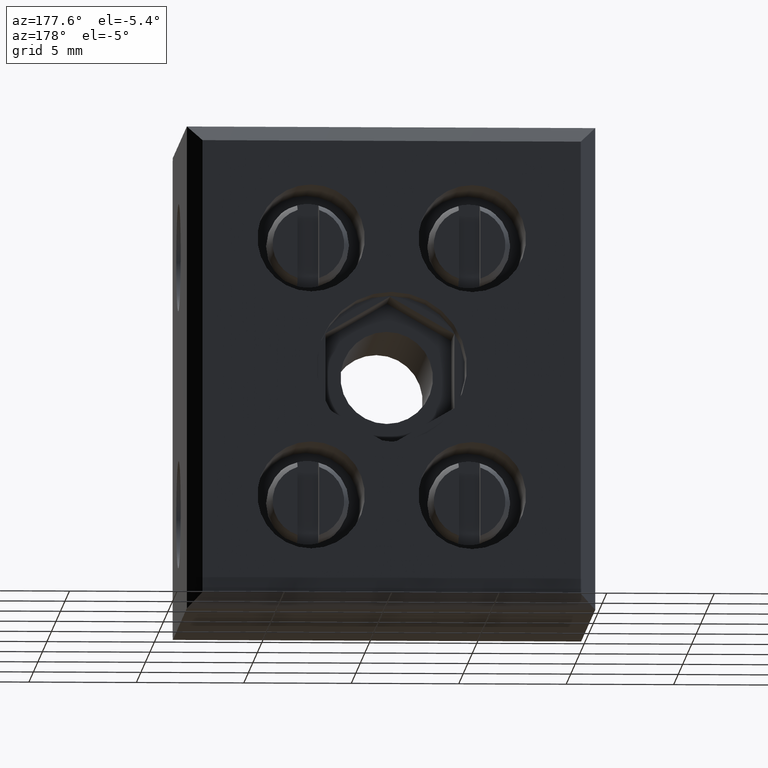
[diagram: clean part render]
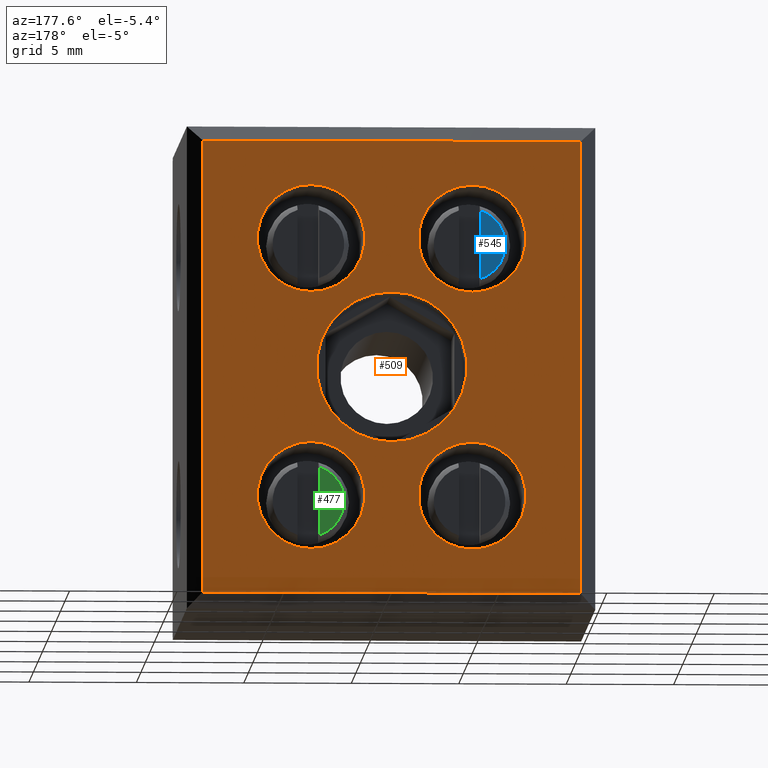
[diagram: same view with three faces highlighted in distinct colors, each labeled with its STEP entity id]
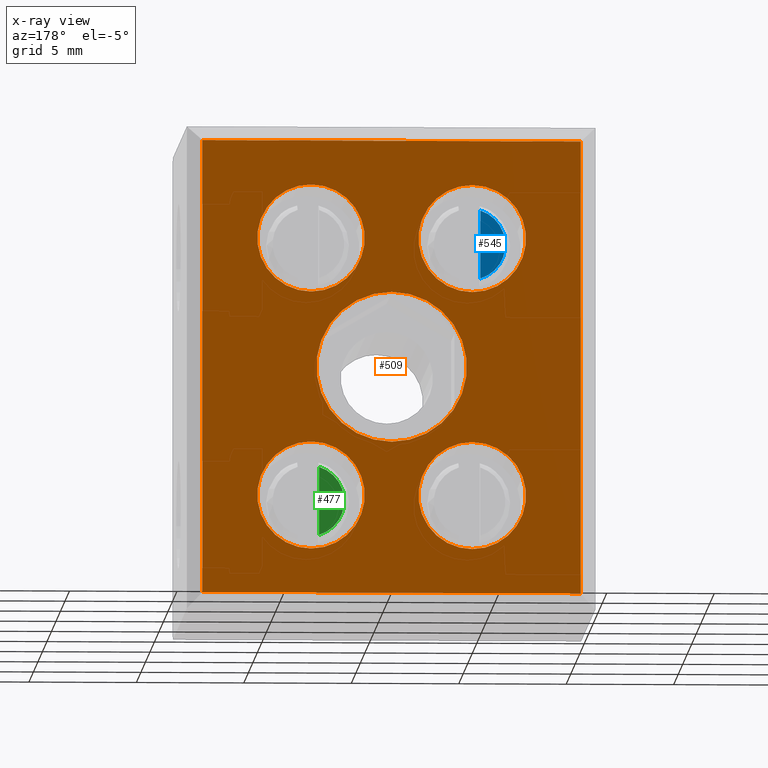
[diagram: x-ray of the same camera — body ghosted, the three highlighted faces saturated]
A machine part, auxiliary view with three faces highlighted in distinct colors.
The next image is the same camera in x-ray (body ghosted, the three faces saturated) — at least one of them is partly hidden behind the body in this view.
Their STEP definitions:

[orange] entity #509 — the highlighted planar face has unit normal (0, -1, 0).
#38 = EDGE_CURVE ( 'NONE', #5422, #5477, #4344, .T. ) ;
#53 = EDGE_CURVE ( 'NONE', #5484, #5471, #4372, .T. ) ;
#88 = EDGE_CURVE ( 'NONE', #5467, #5466, #4411, .T. ) ;
#93 = EDGE_CURVE ( 'NONE', #5461, #5504, #4420, .T. ) ;
#128 = EDGE_CURVE ( 'NONE', #4635, #5538, #4501, .T. ) ;
#261 = EDGE_CURVE ( 'NONE', #5538, #4635, #4466, .T. ) ;
#263 = EDGE_CURVE ( 'NONE', #5466, #5467, #4569, .T. ) ;
#266 = EDGE_CURVE ( 'NONE', #4734, #4797, #1897, .T. ) ;
#271 = EDGE_CURVE ( 'NONE', #5504, #5461, #4455, .T. ) ;
#277 = EDGE_CURVE ( 'NONE', #5471, #5484, #4526, .T. ) ;
#291 = EDGE_CURVE ( 'NONE', #4753, #4797, #1938, .T. ) ;
#292 = EDGE_CURVE ( 'NONE', #5477, #5422, #716, .T. ) ;
#315 = EDGE_CURVE ( 'NONE', #4767, #4753, #2008, .T. ) ;
#359 = EDGE_CURVE ( 'NONE', #4734, #4767, #1088, .T. ) ;
#509 = ADVANCED_FACE ( 'NONE', ( #2964, #2943, #2968, #2926, #2920, #2929 ), #2928, .F. ) ;
#691 = AXIS2_PLACEMENT_3D ( 'NONE', #1939, #1913, #1947 ) ;
#709 = AXIS2_PLACEMENT_3D ( 'NONE', #1976, #1980, #1989 ) ;
#714 = VECTOR ( 'NONE', #1910, 1000.000000000000000 ) ;
#716 = CIRCLE ( 'NONE', #709, 3.499999999999999600 ) ;
#726 = VECTOR ( 'NONE', #2014, 1000.000000000000000 ) ;
#787 = VECTOR ( 'NONE', #1133, 1000.000000000000000 ) ;
#961 = AXIS2_PLACEMENT_3D ( 'NONE', #2947, #2923, #2948 ) ;
#1088 = LINE ( 'NONE', #1126, #787 ) ;
#1126 = CARTESIAN_POINT ( 'NONE',  ( 8.262642282959173900, 17.00000000000000000, 15.76443990011444600 ) ) ;
#1133 = DIRECTION ( 'NONE',  ( -0.0000000000000000000, -0.0000000000000000000, -1.000000000000000000 ) ) ;
#1826 = CARTESIAN_POINT ( 'NONE',  ( 3.212642282959047100, 17.00000000000000000, 10.51443988491849900 ) ) ;
#1828 = DIRECTION ( 'NONE',  ( 0.0000000000000000000, 1.000000000000000000, 0.0000000000000000000 ) ) ;
#1836 = DIRECTION ( 'NONE',  ( 0.0000000000000000000, 0.0000000000000000000, 1.000000000000000000 ) ) ;
#1871 = DIRECTION ( 'NONE',  ( 0.0000000000000000000, 0.0000000000000000000, 1.000000000000000000 ) ) ;
#1872 = CARTESIAN_POINT ( 'NONE',  ( -4.287357717040952900, 17.00000000000000000, 10.51443988491849900 ) ) ;
#1879 = CARTESIAN_POINT ( 'NONE',  ( 8.459047474323355700, 17.00000000000000000, 15.06443988491829300 ) ) ;
#1883 = DIRECTION ( 'NONE',  ( 0.0000000000000000000, 1.000000000000000000, 0.0000000000000000000 ) ) ;
#1889 = DIRECTION ( 'NONE',  ( -1.000000000000000000, -0.0000000000000000000, -0.0000000000000000000 ) ) ;
#1891 = DIRECTION ( 'NONE',  ( 0.0000000000000000000, 1.000000000000000000, 0.0000000000000000000 ) ) ;
#1897 = LINE ( 'NONE', #1879, #4272 ) ;
#1899 = CARTESIAN_POINT ( 'NONE',  ( 3.212642282959047100, 17.00000000000000000, -1.485560115081501900 ) ) ;
#1901 = DIRECTION ( 'NONE',  ( 0.0000000000000000000, 0.0000000000000000000, 1.000000000000000000 ) ) ;
#1910 = DIRECTION ( 'NONE',  ( -0.0000000000000000000, 0.0000000000000000000, 1.000000000000000000 ) ) ;
#1913 = DIRECTION ( 'NONE',  ( 0.0000000000000000000, 1.000000000000000000, 0.0000000000000000000 ) ) ;
#1927 = CARTESIAN_POINT ( 'NONE',  ( -9.337357717040948300, 17.00000000000000000, 15.76443990011444600 ) ) ;
#1938 = LINE ( 'NONE', #1927, #714 ) ;
#1939 = CARTESIAN_POINT ( 'NONE',  ( -4.287357717040952900, 17.00000000000000000, -1.485560115081501900 ) ) ;
#1947 = DIRECTION ( 'NONE',  ( 0.0000000000000000000, 0.0000000000000000000, 1.000000000000000000 ) ) ;
#1976 = CARTESIAN_POINT ( 'NONE',  ( -0.5373577170409511400, 17.00000000000000000, 4.514439884918497900 ) ) ;
#1980 = DIRECTION ( 'NONE',  ( 0.0000000000000000000, 1.000000000000000000, 0.0000000000000000000 ) ) ;
#1989 = DIRECTION ( 'NONE',  ( 0.0000000000000000000, 0.0000000000000000000, 1.000000000000000000 ) ) ;
#2008 = LINE ( 'NONE', #2028, #726 ) ;
#2014 = DIRECTION ( 'NONE',  ( -1.000000000000000000, -8.755881686935502400E-013, 8.755881686935547800E-013 ) ) ;
#2028 = CARTESIAN_POINT ( 'NONE',  ( 8.459047474285180000, 17.00000000000017400, -6.035560115113273800 ) ) ;
#2593 = CARTESIAN_POINT ( 'NONE',  ( 3.212642282959047500, 17.00000000000000000, 8.014439884918497000 ) ) ;
#2628 = CARTESIAN_POINT ( 'NONE',  ( 8.262642282959173900, 17.00000000000000000, 15.06443988491829300 ) ) ;
#2714 = CARTESIAN_POINT ( 'NONE',  ( -9.337357717040948300, 17.00000000000000000, 15.06443988491829300 ) ) ;
#2720 = CARTESIAN_POINT ( 'NONE',  ( -9.337357717044803000, 16.99999999999614900, -6.035560115086132000 ) ) ;
#2733 = CARTESIAN_POINT ( 'NONE',  ( 8.262642282959173900, 17.00000000000000000, -6.035560115105396600 ) ) ;
#2740 = CARTESIAN_POINT ( 'NONE',  ( -0.5373577170409511400, 17.00000000000000000, 8.014439884918497000 ) ) ;
#2743 = CARTESIAN_POINT ( 'NONE',  ( -0.5373577170409507000, 17.00000000000000000, 1.014439884918498600 ) ) ;
#2763 = CARTESIAN_POINT ( 'NONE',  ( -4.287357717040952900, 17.00000000000000000, -3.985560115081502500 ) ) ;
#2766 = CARTESIAN_POINT ( 'NONE',  ( -4.287357717040952900, 17.00000000000000000, 8.014439884918497000 ) ) ;
#2780 = CARTESIAN_POINT ( 'NONE',  ( -4.287357717040952900, 17.00000000000000000, 13.01443988491849900 ) ) ;
#2783 = CARTESIAN_POINT ( 'NONE',  ( 3.212642282959047500, 17.00000000000000000, -3.985560115081501700 ) ) ;
#2803 = CARTESIAN_POINT ( 'NONE',  ( -4.287357717040952900, 17.00000000000000000, 1.014439884918498600 ) ) ;
#2806 = CARTESIAN_POINT ( 'NONE',  ( 3.212642282959047100, 17.00000000000000000, 13.01443988491849900 ) ) ;
#2844 = CARTESIAN_POINT ( 'NONE',  ( 3.212642282959047100, 17.00000000000000000, 1.014439884918497700 ) ) ;
#2920 = FACE_BOUND ( 'NONE', #3896, .T. ) ;
#2923 = DIRECTION ( 'NONE',  ( 0.0000000000000000000, -1.000000000000000000, 0.0000000000000000000 ) ) ;
#2926 = FACE_BOUND ( 'NONE', #3880, .T. ) ;
#2928 = PLANE ( 'NONE',  #961 ) ;
#2929 = FACE_OUTER_BOUND ( 'NONE', #3899, .T. ) ;
#2943 = FACE_BOUND ( 'NONE', #3861, .T. ) ;
#2947 = CARTESIAN_POINT ( 'NONE',  ( 8.459047474323355700, 17.00000000000000000, 15.76443990011444600 ) ) ;
#2948 = DIRECTION ( 'NONE',  ( 0.0000000000000000000, -0.0000000000000000000, -1.000000000000000000 ) ) ;
#2964 = FACE_BOUND ( 'NONE', #3850, .T. ) ;
#2968 = FACE_BOUND ( 'NONE', #3845, .T. ) ;
#3215 = DIRECTION ( 'NONE',  ( 0.0000000000000000000, 0.0000000000000000000, 1.000000000000000000 ) ) ;
#3227 = DIRECTION ( 'NONE',  ( 0.0000000000000000000, 1.000000000000000000, 0.0000000000000000000 ) ) ;
#3241 = CARTESIAN_POINT ( 'NONE',  ( 3.212642282959047100, 17.00000000000000000, 10.51443988491849900 ) ) ;
#3547 = ORIENTED_EDGE ( 'NONE', *, *, #266, .F. ) ;
#3555 = ORIENTED_EDGE ( 'NONE', *, *, #38, .F. ) ;
#3561 = ORIENTED_EDGE ( 'NONE', *, *, #128, .F. ) ;
#3581 = ORIENTED_EDGE ( 'NONE', *, *, #315, .T. ) ;
#3845 = EDGE_LOOP ( 'NONE', ( #4785, #4649 ) ) ;
#3850 = EDGE_LOOP ( 'NONE', ( #4737, #4714 ) ) ;
#3861 = EDGE_LOOP ( 'NONE', ( #4662, #4700 ) ) ;
#3880 = EDGE_LOOP ( 'NONE', ( #4726, #3561 ) ) ;
#3896 = EDGE_LOOP ( 'NONE', ( #4804, #3555 ) ) ;
#3899 = EDGE_LOOP ( 'NONE', ( #4835, #3581, #4881, #3547 ) ) ;
#4022 = DIRECTION ( 'NONE',  ( 0.0000000000000000000, 0.0000000000000000000, 1.000000000000000000 ) ) ;
#4034 = DIRECTION ( 'NONE',  ( 0.0000000000000000000, 1.000000000000000000, 0.0000000000000000000 ) ) ;
#4048 = CARTESIAN_POINT ( 'NONE',  ( -0.5373577170409511400, 17.00000000000000000, 4.514439884918497900 ) ) ;
#4057 = CARTESIAN_POINT ( 'NONE',  ( -4.287357717040952900, 17.00000000000000000, -1.485560115081501900 ) ) ;
#4091 = DIRECTION ( 'NONE',  ( 0.0000000000000000000, 1.000000000000000000, 0.0000000000000000000 ) ) ;
#4114 = DIRECTION ( 'NONE',  ( 0.0000000000000000000, 0.0000000000000000000, 1.000000000000000000 ) ) ;
#4189 = CARTESIAN_POINT ( 'NONE',  ( -4.287357717040952900, 17.00000000000000000, 10.51443988491849900 ) ) ;
#4191 = CARTESIAN_POINT ( 'NONE',  ( 3.212642282959047100, 17.00000000000000000, -1.485560115081501900 ) ) ;
#4192 = DIRECTION ( 'NONE',  ( 0.0000000000000000000, 1.000000000000000000, 0.0000000000000000000 ) ) ;
#4193 = DIRECTION ( 'NONE',  ( 0.0000000000000000000, 0.0000000000000000000, 1.000000000000000000 ) ) ;
#4207 = DIRECTION ( 'NONE',  ( 0.0000000000000000000, 1.000000000000000000, 0.0000000000000000000 ) ) ;
#4218 = DIRECTION ( 'NONE',  ( 0.0000000000000000000, 0.0000000000000000000, 1.000000000000000000 ) ) ;
#4272 = VECTOR ( 'NONE', #1889, 1000.000000000000000 ) ;
#4344 = CIRCLE ( 'NONE', #4355, 3.499999999999999600 ) ;
#4355 = AXIS2_PLACEMENT_3D ( 'NONE', #4048, #4034, #4022 ) ;
#4368 = AXIS2_PLACEMENT_3D ( 'NONE', #4057, #4091, #4114 ) ;
#4372 = CIRCLE ( 'NONE', #4368, 2.500000000000000400 ) ;
#4411 = CIRCLE ( 'NONE', #4414, 2.500000000000000400 ) ;
#4414 = AXIS2_PLACEMENT_3D ( 'NONE', #4189, #4207, #4218 ) ;
#4420 = CIRCLE ( 'NONE', #4422, 2.499999999999999600 ) ;
#4422 = AXIS2_PLACEMENT_3D ( 'NONE', #4191, #4192, #4193 ) ;
#4455 = CIRCLE ( 'NONE', #4486, 2.499999999999999600 ) ;
#4466 = CIRCLE ( 'NONE', #4518, 2.500000000000000400 ) ;
#4486 = AXIS2_PLACEMENT_3D ( 'NONE', #1899, #1883, #1871 ) ;
#4501 = CIRCLE ( 'NONE', #4512, 2.500000000000000400 ) ;
#4512 = AXIS2_PLACEMENT_3D ( 'NONE', #3241, #3227, #3215 ) ;
#4518 = AXIS2_PLACEMENT_3D ( 'NONE', #1826, #1828, #1836 ) ;
#4526 = CIRCLE ( 'NONE', #691, 2.500000000000000400 ) ;
#4569 = CIRCLE ( 'NONE', #4591, 2.500000000000000400 ) ;
#4591 = AXIS2_PLACEMENT_3D ( 'NONE', #1872, #1891, #1901 ) ;
#4635 = VERTEX_POINT ( 'NONE', #2593 ) ;
#4649 = ORIENTED_EDGE ( 'NONE', *, *, #88, .F. ) ;
#4662 = ORIENTED_EDGE ( 'NONE', *, *, #271, .F. ) ;
#4700 = ORIENTED_EDGE ( 'NONE', *, *, #93, .F. ) ;
#4714 = ORIENTED_EDGE ( 'NONE', *, *, #53, .F. ) ;
#4726 = ORIENTED_EDGE ( 'NONE', *, *, #261, .F. ) ;
#4734 = VERTEX_POINT ( 'NONE', #2628 ) ;
#4737 = ORIENTED_EDGE ( 'NONE', *, *, #277, .F. ) ;
#4753 = VERTEX_POINT ( 'NONE', #2720 ) ;
#4767 = VERTEX_POINT ( 'NONE', #2733 ) ;
#4785 = ORIENTED_EDGE ( 'NONE', *, *, #263, .F. ) ;
#4797 = VERTEX_POINT ( 'NONE', #2714 ) ;
#4804 = ORIENTED_EDGE ( 'NONE', *, *, #292, .F. ) ;
#4835 = ORIENTED_EDGE ( 'NONE', *, *, #359, .T. ) ;
#4881 = ORIENTED_EDGE ( 'NONE', *, *, #291, .T. ) ;
#5422 = VERTEX_POINT ( 'NONE', #2743 ) ;
#5461 = VERTEX_POINT ( 'NONE', #2783 ) ;
#5466 = VERTEX_POINT ( 'NONE', #2780 ) ;
#5467 = VERTEX_POINT ( 'NONE', #2766 ) ;
#5471 = VERTEX_POINT ( 'NONE', #2803 ) ;
#5477 = VERTEX_POINT ( 'NONE', #2740 ) ;
#5484 = VERTEX_POINT ( 'NONE', #2763 ) ;
#5504 = VERTEX_POINT ( 'NONE', #2844 ) ;
#5538 = VERTEX_POINT ( 'NONE', #2806 ) ;

[blue] entity #545 — the highlighted planar face has unit normal (0, 1, 0).
#48 = EDGE_CURVE ( 'NONE', #5485, #5513, #4358, .T. ) ;
#141 = EDGE_CURVE ( 'NONE', #5485, #5513, #3251, .T. ) ;
#545 = ADVANCED_FACE ( 'NONE', ( #3109 ), #3087, .T. ) ;
#1030 = AXIS2_PLACEMENT_3D ( 'NONE', #3088, #3089, #3092 ) ;
#2744 = CARTESIAN_POINT ( 'NONE',  ( -4.787357717036928600, 14.05463435612663800, 12.10325301941769500 ) ) ;
#2810 = CARTESIAN_POINT ( 'NONE',  ( -4.787357717036928600, 14.05463435612663800, 8.925626750419301200 ) ) ;
#3087 = PLANE ( 'NONE',  #1030 ) ;
#3088 = CARTESIAN_POINT ( 'NONE',  ( -3.787357717036928600, 14.05463435612663900, 10.51443988491849900 ) ) ;
#3089 = DIRECTION ( 'NONE',  ( 0.0000000000000000000, 1.000000000000000000, 0.0000000000000000000 ) ) ;
#3092 = DIRECTION ( 'NONE',  ( 0.0000000000000000000, -0.0000000000000000000, 1.000000000000000000 ) ) ;
#3109 = FACE_OUTER_BOUND ( 'NONE', #3792, .T. ) ;
#3251 = LINE ( 'NONE', #3269, #4508 ) ;
#3259 = DIRECTION ( 'NONE',  ( -0.0000000000000000000, 0.0000000000000000000, -1.000000000000000000 ) ) ;
#3269 = CARTESIAN_POINT ( 'NONE',  ( -4.787357717036928600, 14.05463435612663900, 10.51443988491849900 ) ) ;
#3792 = EDGE_LOOP ( 'NONE', ( #5257, #5240 ) ) ;
#4055 = CARTESIAN_POINT ( 'NONE',  ( -4.287357717040952900, 14.05463435612663900, 10.51443988491849900 ) ) ;
#4081 = DIRECTION ( 'NONE',  ( 0.0000000000000000000, 0.0000000000000000000, -1.000000000000000000 ) ) ;
#4092 = DIRECTION ( 'NONE',  ( -0.0000000000000000000, -1.000000000000000000, -0.0000000000000000000 ) ) ;
#4358 = CIRCLE ( 'NONE', #4376, 1.665631164559889100 ) ;
#4376 = AXIS2_PLACEMENT_3D ( 'NONE', #4055, #4092, #4081 ) ;
#4508 = VECTOR ( 'NONE', #3259, 1000.000000000000000 ) ;
#5240 = ORIENTED_EDGE ( 'NONE', *, *, #48, .F. ) ;
#5257 = ORIENTED_EDGE ( 'NONE', *, *, #141, .T. ) ;
#5485 = VERTEX_POINT ( 'NONE', #2744 ) ;
#5513 = VERTEX_POINT ( 'NONE', #2810 ) ;

[green] entity #477 — the highlighted planar face has unit normal (0, 1, 0).
#80 = EDGE_CURVE ( 'NONE', #5537, #5457, #4404, .T. ) ;
#194 = EDGE_CURVE ( 'NONE', #5537, #5457, #3403, .T. ) ;
#477 = ADVANCED_FACE ( 'NONE', ( #1568 ), #1544, .T. ) ;
#875 = AXIS2_PLACEMENT_3D ( 'NONE', #1531, #1520, #1521 ) ;
#1520 = DIRECTION ( 'NONE',  ( 0.0000000000000000000, 1.000000000000000000, 0.0000000000000000000 ) ) ;
#1521 = DIRECTION ( 'NONE',  ( 0.0000000000000000000, -0.0000000000000000000, 1.000000000000000000 ) ) ;
#1531 = CARTESIAN_POINT ( 'NONE',  ( 3.712642282963071900, 14.05463435612663900, -1.485560115081501900 ) ) ;
#1544 = PLANE ( 'NONE',  #875 ) ;
#1568 = FACE_OUTER_BOUND ( 'NONE', #3760, .T. ) ;
#2798 = CARTESIAN_POINT ( 'NONE',  ( 2.712642282963071900, 14.05463435612663800, -3.074373249580698400 ) ) ;
#2836 = CARTESIAN_POINT ( 'NONE',  ( 2.712642282963071000, 14.05463435612663800, 0.1032530194176945300 ) ) ;
#3403 = LINE ( 'NONE', #3448, #4581 ) ;
#3448 = CARTESIAN_POINT ( 'NONE',  ( 2.712642282963071000, 14.05463435612663900, -1.485560115081501900 ) ) ;
#3475 = DIRECTION ( 'NONE',  ( -0.0000000000000000000, 0.0000000000000000000, -1.000000000000000000 ) ) ;
#3760 = EDGE_LOOP ( 'NONE', ( #5233, #5258 ) ) ;
#4153 = CARTESIAN_POINT ( 'NONE',  ( 3.212642282959046600, 14.05463435612663900, -1.485560115081501900 ) ) ;
#4155 = DIRECTION ( 'NONE',  ( -0.0000000000000000000, -1.000000000000000000, -0.0000000000000000000 ) ) ;
#4183 = DIRECTION ( 'NONE',  ( 0.0000000000000000000, 0.0000000000000000000, -1.000000000000000000 ) ) ;
#4404 = CIRCLE ( 'NONE', #4406, 1.665631164559889800 ) ;
#4406 = AXIS2_PLACEMENT_3D ( 'NONE', #4153, #4155, #4183 ) ;
#4581 = VECTOR ( 'NONE', #3475, 1000.000000000000000 ) ;
#5233 = ORIENTED_EDGE ( 'NONE', *, *, #194, .T. ) ;
#5258 = ORIENTED_EDGE ( 'NONE', *, *, #80, .F. ) ;
#5457 = VERTEX_POINT ( 'NONE', #2798 ) ;
#5537 = VERTEX_POINT ( 'NONE', #2836 ) ;